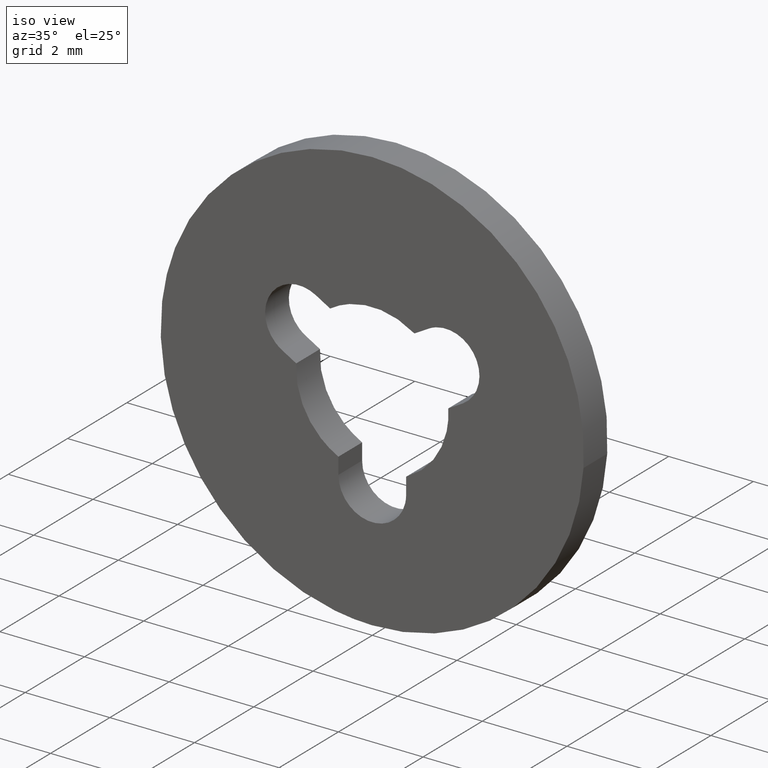
[diagram: clean part render]
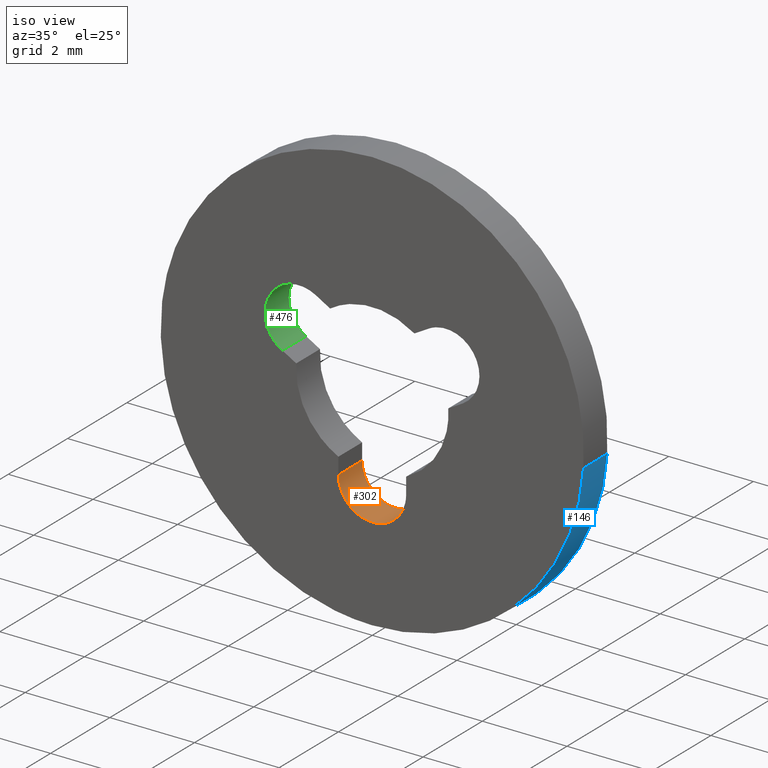
[diagram: same view with three faces highlighted in distinct colors, each labeled with its STEP entity id]
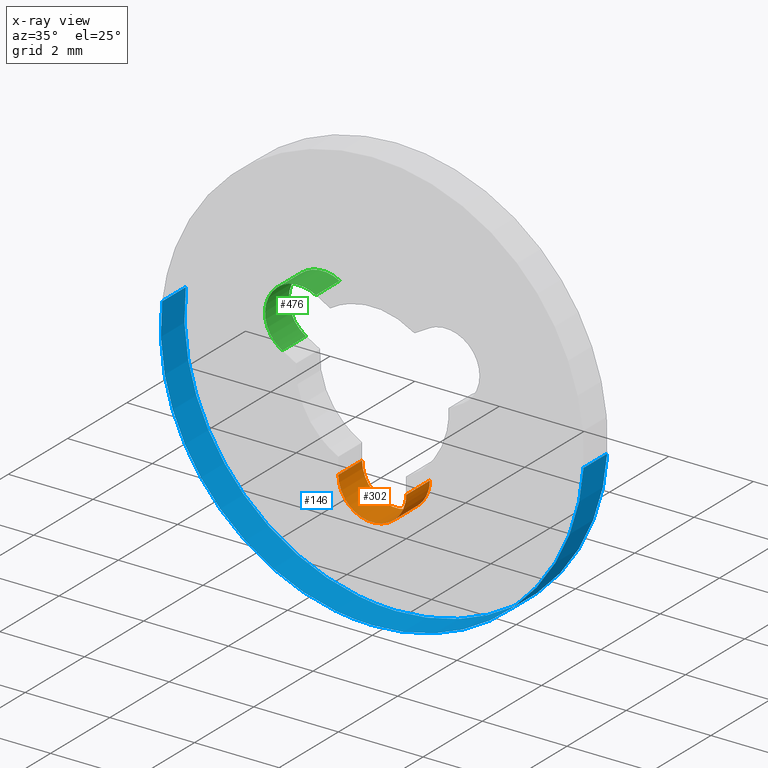
[diagram: x-ray of the same camera — body ghosted, the three highlighted faces saturated]
A machine part, iso view with three faces highlighted in distinct colors.
The next image is the same camera in x-ray (body ghosted, the three faces saturated) — at least one of them is partly hidden behind the body in this view.
Their STEP definitions:

[orange] entity #302 — the highlighted face is a freeform B-spline surface patch.
#230=CARTESIAN_POINT('',(0.799238577265486,0.820000000000024,-1.965104490107732));
#231=CARTESIAN_POINT('',(0.799238577265486,-0.020500000000001,-1.965104490107732));
#232=CARTESIAN_POINT('',(0.836333596761906,0.820000000000024,-2.814720119668256));
#233=CARTESIAN_POINT('',(0.836333596761906,-0.020500000000001,-2.814720119668256));
#234=CARTESIAN_POINT('',(-0.013961925149828,0.820000000000024,-2.799878156125113));
#235=CARTESIAN_POINT('',(-0.013961925149828,-0.020500000000001,-2.799878156125113));
#236=CARTESIAN_POINT('',(-0.864257447061562,0.820000000000024,-2.785036192581970));
#237=CARTESIAN_POINT('',(-0.864257447061562,-0.020500000000001,-2.785036192581970));
#238=CARTESIAN_POINT('',(-0.797533866986502,0.820000000000024,-1.937232723417723));
#239=CARTESIAN_POINT('',(-0.797533866986502,-0.020500000000001,-1.937232723417723));
#247=(BOUNDED_SURFACE()B_SPLINE_SURFACE(1,2,((#230,#232,#234,#236,#238),(#231,#233,#235,#237,#239)),.UNSPECIFIED.,.F.,.F.,.U.)B_SPLINE_SURFACE_WITH_KNOTS((2,2),(3,2,3),(0.0,1.0),(0.0,1.0,2.0),.UNSPECIFIED.)GEOMETRIC_REPRESENTATION_ITEM()RATIONAL_B_SPLINE_SURFACE(((1.0,0.685182990326359,1.0,0.685182990326359,1.0),(1.0,0.685182990326359,1.0,0.685182990326359,1.0)))REPRESENTATION_ITEM('')SURFACE());
#248=CARTESIAN_POINT('',(-0.800000000000000,0.0,-2.0));
#249=VERTEX_POINT('',#248);
#250=CARTESIAN_POINT('',(0.799999999999988,0.0,-1.999999860373660));
#251=VERTEX_POINT('',#250);
#252=CARTESIAN_POINT('',(-0.800000000000000,0.0,-2.0));
#253=CARTESIAN_POINT('',(-0.800000000000000,0.0,-2.461880246379777));
#254=CARTESIAN_POINT('',(-0.399999959693347,0.0,-2.692820346298606));
#255=CARTESIAN_POINT('',(0.000000080613306,0.0,-2.923760446217436));
#256=CARTESIAN_POINT('',(0.400000080613302,0.0,-2.692820276485433));
#257=CARTESIAN_POINT('',(0.800000080613298,0.0,-2.461880106753430));
#258=CARTESIAN_POINT('',(0.799999999999988,0.0,-1.999999860373660));
#266=(BOUNDED_CURVE()B_SPLINE_CURVE(2,(#252,#253,#254,#255,#256,#257,#258),.UNSPECIFIED.,.F.,.U.)B_SPLINE_CURVE_WITH_KNOTS((3,2,2,3),(0.0,0.333333333333333,0.666666666666667,1.0),.UNSPECIFIED.)CURVE()GEOMETRIC_REPRESENTATION_ITEM()RATIONAL_B_SPLINE_CURVE((1.0,0.866025389240028,1.0,0.866025389240028,1.0,0.866025389240028,1.0))REPRESENTATION_ITEM(''));
#267=EDGE_CURVE('',#249,#251,#266,.T.);
#268=ORIENTED_EDGE('',*,*,#267,.T.);
#269=CARTESIAN_POINT('',(0.799999999999988,0.800000000000023,-1.999999860373660));
#270=VERTEX_POINT('',#269);
#271=CARTESIAN_POINT('',(0.799999999999988,0.800000000000023,-1.999999860373660));
#272=CARTESIAN_POINT('',(0.799999999999988,0.0,-1.999999860373660));
#273=QUASI_UNIFORM_CURVE('',1,(#271,#272),.UNSPECIFIED.,.F.,.U.);
#274=EDGE_CURVE('',#270,#251,#273,.T.);
#275=ORIENTED_EDGE('',*,*,#274,.F.);
#276=CARTESIAN_POINT('',(-0.800000000000000,0.800000000000023,-2.0));
#277=VERTEX_POINT('',#276);
#278=CARTESIAN_POINT('',(-0.800000000000000,0.800000000000023,-2.0));
#279=CARTESIAN_POINT('',(-0.800000000000000,0.800000000000023,-2.461880246379777));
#280=CARTESIAN_POINT('',(-0.399999959693347,0.800000000000023,-2.692820346298606));
#281=CARTESIAN_POINT('',(0.000000080613306,0.800000000000023,-2.923760446217436));
#282=CARTESIAN_POINT('',(0.400000080613302,0.800000000000023,-2.692820276485433));
#283=CARTESIAN_POINT('',(0.800000080613298,0.800000000000023,-2.461880106753430));
#284=CARTESIAN_POINT('',(0.799999999999988,0.800000000000023,-1.999999860373660));
#292=(BOUNDED_CURVE()B_SPLINE_CURVE(2,(#278,#279,#280,#281,#282,#283,#284),.UNSPECIFIED.,.F.,.U.)B_SPLINE_CURVE_WITH_KNOTS((3,2,2,3),(0.0,0.333333333333333,0.666666666666667,1.0),.UNSPECIFIED.)CURVE()GEOMETRIC_REPRESENTATION_ITEM()RATIONAL_B_SPLINE_CURVE((1.0,0.866025389240028,1.0,0.866025389240028,1.0,0.866025389240028,1.0))REPRESENTATION_ITEM(''));
#293=EDGE_CURVE('',#277,#270,#292,.T.);
#294=ORIENTED_EDGE('',*,*,#293,.F.);
#295=CARTESIAN_POINT('',(-0.800000000000000,0.800000000000023,-2.0));
#296=CARTESIAN_POINT('',(-0.800000000000000,0.0,-2.0));
#297=QUASI_UNIFORM_CURVE('',1,(#295,#296),.UNSPECIFIED.,.F.,.U.);
#298=EDGE_CURVE('',#277,#249,#297,.T.);
#299=ORIENTED_EDGE('',*,*,#298,.T.);
#300=EDGE_LOOP('',(#268,#275,#294,#299));
#301=FACE_OUTER_BOUND('',#300,.T.);
#302=ADVANCED_FACE('',(#301),#247,.F.);

[blue] entity #146 — the highlighted face is a freeform B-spline surface patch.
#44=CARTESIAN_POINT('',(-4.965047631818332,0.820000000000024,0.590171173283792));
#45=CARTESIAN_POINT('',(-4.981938077243028,0.820000000000024,0.448073643189888));
#46=CARTESIAN_POINT('',(-4.990673992109334,0.820000000000024,0.305242697674285));
#47=CARTESIAN_POINT('',(-5.295916689783620,0.820000000000024,-4.685431294435048));
#48=CARTESIAN_POINT('',(-0.305242697674285,0.820000000000024,-4.990673992109334));
#49=CARTESIAN_POINT('',(4.685431294435048,0.820000000000024,-5.295916689783620));
#50=CARTESIAN_POINT('',(4.990673992109334,0.820000000000024,-0.305242697674285));
#51=CARTESIAN_POINT('',(-4.965047631818332,-0.020500000000001,0.590171173283792));
#52=CARTESIAN_POINT('',(-4.981938077243028,-0.020500000000001,0.448073643189888));
#53=CARTESIAN_POINT('',(-4.990673992109334,-0.020500000000001,0.305242697674285));
#54=CARTESIAN_POINT('',(-5.295916689783620,-0.020500000000001,-4.685431294435048));
#55=CARTESIAN_POINT('',(-0.305242697674285,-0.020500000000001,-4.990673992109334));
#56=CARTESIAN_POINT('',(4.685431294435048,-0.020500000000001,-5.295916689783620));
#57=CARTESIAN_POINT('',(4.990673992109334,-0.020500000000001,-0.305242697674285));
#65=(BOUNDED_SURFACE()B_SPLINE_SURFACE(2,1,((#44,#51),(#45,#52),(#46,#53),(#47,#54),(#48,#55),(#49,#56),(#50,#57)),.UNSPECIFIED.,.F.,.F.,.U.)B_SPLINE_SURFACE_WITH_KNOTS((3,2,2,3),(2,2),(0.0,0.331370849898476,8.615642097360375,16.899913344822270),(0.0,1.0),.UNSPECIFIED.)GEOMETRIC_REPRESENTATION_ITEM()RATIONAL_B_SPLINE_SURFACE(((0.977505800795127,0.977505800795127),(0.988284271247462,0.988284271247462),(1.0,1.0),(0.707106781186548,0.707106781186548),(1.0,1.0),(0.707106781186548,0.707106781186548),(1.0,1.0)))REPRESENTATION_ITEM('')SURFACE());
#66=CARTESIAN_POINT('',(-4.965048007634929,3.045997E-014,0.590168011561354));
#67=VERTEX_POINT('',#66);
#68=CARTESIAN_POINT('',(0.0,0.0,-5.0));
#69=VERTEX_POINT('',#68);
#70=CARTESIAN_POINT('',(-4.965048007634929,3.045997E-014,0.590168011561354));
#71=CARTESIAN_POINT('',(-5.000000000000001,0.0,0.296119000685819));
#72=CARTESIAN_POINT('',(-5.0,0.0,0.0));
#73=CARTESIAN_POINT('',(-5.000000000000001,0.0,-5.000000000000001));
#74=CARTESIAN_POINT('',(0.0,0.0,-5.0));
#82=(BOUNDED_CURVE()B_SPLINE_CURVE(2,(#70,#71,#72,#73,#74),.UNSPECIFIED.,.F.,.U.)B_SPLINE_CURVE_WITH_KNOTS((3,2,3),(0.229562581136241,0.250000000000000,0.500000000000000),.UNSPECIFIED.)CURVE()GEOMETRIC_REPRESENTATION_ITEM()RATIONAL_B_SPLINE_CURVE((0.956026965128767,0.976056074419019,1.0,0.707106781186548,1.0))REPRESENTATION_ITEM(''));
#83=EDGE_CURVE('',#67,#69,#82,.T.);
#84=ORIENTED_EDGE('',*,*,#83,.F.);
#85=CARTESIAN_POINT('',(-4.965048002999415,0.800000000000023,0.590168050559857));
#86=VERTEX_POINT('',#85);
#87=CARTESIAN_POINT('',(-4.965048002999415,0.800000000000023,0.590168050559857));
#88=CARTESIAN_POINT('',(-4.965048007634929,3.045997E-014,0.590168011561354));
#89=QUASI_UNIFORM_CURVE('',1,(#87,#88),.UNSPECIFIED.,.F.,.U.);
#90=EDGE_CURVE('',#86,#67,#89,.T.);
#91=ORIENTED_EDGE('',*,*,#90,.F.);
#92=CARTESIAN_POINT('',(0.0,0.800000000000023,-5.0));
#93=VERTEX_POINT('',#92);
#94=CARTESIAN_POINT('',(-4.965048002999415,0.800000000000023,0.590168050559856));
#95=CARTESIAN_POINT('',(-5.0,0.800000000000023,0.296119020391210));
#96=CARTESIAN_POINT('',(-5.0,0.800000000000023,0.0));
#97=CARTESIAN_POINT('',(-5.000000000000001,0.800000000000023,-5.000000000000001));
#98=CARTESIAN_POINT('',(0.0,0.800000000000023,-5.0));
#106=(BOUNDED_CURVE()B_SPLINE_CURVE(2,(#94,#95,#96,#97,#98),.UNSPECIFIED.,.F.,.U.)B_SPLINE_CURVE_WITH_KNOTS((3,2,3),(0.229562579808786,0.250000000000000,0.500000000000000),.UNSPECIFIED.)CURVE()GEOMETRIC_REPRESENTATION_ITEM()RATIONAL_B_SPLINE_CURVE((0.956026962526900,0.976056072863809,1.0,0.707106781186548,1.0))REPRESENTATION_ITEM(''));
#107=EDGE_CURVE('',#86,#93,#106,.T.);
#108=ORIENTED_EDGE('',*,*,#107,.T.);
#109=CARTESIAN_POINT('',(4.990674099992546,0.800000000000023,-0.305240933789139));
#110=VERTEX_POINT('',#109);
#111=CARTESIAN_POINT('',(0.0,0.800000000000023,-5.0));
#112=CARTESIAN_POINT('',(4.703532000033385,0.800000000000023,-5.000000000000001));
#113=CARTESIAN_POINT('',(4.990674099992546,0.800000000000023,-0.305240933789139));
#121=(BOUNDED_CURVE()B_SPLINE_CURVE(2,(#111,#112,#113),.UNSPECIFIED.,.F.,.U.)B_SPLINE_CURVE_WITH_KNOTS((3,3),(0.500000000000000,0.739333023226263),.UNSPECIFIED.)CURVE()GEOMETRIC_REPRESENTATION_ITEM()RATIONAL_B_SPLINE_CURVE((1.0,0.719603921835620,0.976072172374189))REPRESENTATION_ITEM(''));
#122=EDGE_CURVE('',#93,#110,#121,.T.);
#123=ORIENTED_EDGE('',*,*,#122,.T.);
#124=CARTESIAN_POINT('',(4.990674101339240,2.014708E-014,-0.305240911770624));
#125=VERTEX_POINT('',#124);
#126=CARTESIAN_POINT('',(4.990674099992546,0.800000000000023,-0.305240933789139));
#127=CARTESIAN_POINT('',(4.990674101339240,2.014708E-014,-0.305240911770624));
#128=QUASI_UNIFORM_CURVE('',1,(#126,#127),.UNSPECIFIED.,.F.,.U.);
#129=EDGE_CURVE('',#110,#125,#128,.T.);
#130=ORIENTED_EDGE('',*,*,#129,.T.);
#131=CARTESIAN_POINT('',(0.0,0.0,-5.0));
#132=CARTESIAN_POINT('',(4.703532020823824,0.0,-4.999999999999999));
#133=CARTESIAN_POINT('',(4.990674101339240,2.014708E-014,-0.305240911770624));
#141=(BOUNDED_CURVE()B_SPLINE_CURVE(2,(#131,#132,#133),.UNSPECIFIED.,.F.,.U.)B_SPLINE_CURVE_WITH_KNOTS((3,3),(0.500000000000000,0.739333023987528),.UNSPECIFIED.)CURVE()GEOMETRIC_REPRESENTATION_ITEM()RATIONAL_B_SPLINE_CURVE((1.0,0.719603920943743,0.976072174005725))REPRESENTATION_ITEM(''));
#142=EDGE_CURVE('',#69,#125,#141,.T.);
#143=ORIENTED_EDGE('',*,*,#142,.F.);
#144=EDGE_LOOP('',(#84,#91,#108,#123,#130,#143));
#145=FACE_OUTER_BOUND('',#144,.T.);
#146=ADVANCED_FACE('',(#145),#65,.T.);

[green] entity #476 — the highlighted face is a freeform B-spline surface patch.
#389=CARTESIAN_POINT('',(-2.123123344245450,0.0,0.302073969352699));
#390=VERTEX_POINT('',#389);
#397=CARTESIAN_POINT('',(-2.123123344245450,0.800000000000023,0.302073969352699));
#398=VERTEX_POINT('',#397);
#404=CARTESIAN_POINT('',(-2.123123344245450,0.800000000000023,0.302073969352699));
#405=CARTESIAN_POINT('',(-2.123123344245450,0.0,0.302073969352699));
#406=QUASI_UNIFORM_CURVE('',1,(#404,#405),.UNSPECIFIED.,.F.,.U.);
#407=EDGE_CURVE('',#398,#390,#406,.T.);
#412=CARTESIAN_POINT('',(-2.101543604236167,0.820000000000024,0.290413800383952));
#413=CARTESIAN_POINT('',(-2.101543604236167,-0.020500000000001,0.290413800383952));
#414=CARTESIAN_POINT('',(-2.855858767453020,0.820000000000024,0.683173799761309));
#415=CARTESIAN_POINT('',(-2.855858767453020,-0.020500000000001,0.683173799761309));
#416=CARTESIAN_POINT('',(-2.417781505582944,0.820000000000024,1.412104588795622));
#417=CARTESIAN_POINT('',(-2.417781505582944,-0.020500000000001,1.412104588795622));
#418=CARTESIAN_POINT('',(-1.979704243712868,0.820000000000024,2.141035377829935));
#419=CARTESIAN_POINT('',(-1.979704243712868,-0.020500000000001,2.141035377829935));
#420=CARTESIAN_POINT('',(-1.278877034577208,0.820000000000024,1.659275058267507));
#421=CARTESIAN_POINT('',(-1.278877034577208,-0.020500000000001,1.659275058267507));
#429=(BOUNDED_SURFACE()B_SPLINE_SURFACE(1,2,((#412,#414,#416,#418,#420),(#413,#415,#417,#419,#421)),.UNSPECIFIED.,.F.,.F.,.U.)B_SPLINE_SURFACE_WITH_KNOTS((2,2),(3,2,3),(0.0,1.0),(0.0,1.0,2.0),.UNSPECIFIED.)GEOMETRIC_REPRESENTATION_ITEM()RATIONAL_B_SPLINE_SURFACE(((1.0,0.685182990326359,1.0,0.685182990326359,1.0),(1.0,0.685182990326359,1.0,0.685182990326359,1.0)))REPRESENTATION_ITEM('')SURFACE());
#430=CARTESIAN_POINT('',(-1.332000000000000,0.0,1.692800000000000));
#431=VERTEX_POINT('',#430);
#432=CARTESIAN_POINT('',(-1.332000000000000,0.0,1.692799999999999));
#433=CARTESIAN_POINT('',(-1.733986352333857,0.0,1.924936338147488));
#434=CARTESIAN_POINT('',(-2.135008295443140,0.0,1.691137903387843));
#435=CARTESIAN_POINT('',(-2.536030238552423,0.0,1.457339468628198));
#436=CARTESIAN_POINT('',(-2.532058660846635,0.0,0.993157894756795));
#437=CARTESIAN_POINT('',(-2.528087083140846,0.0,0.528976320885393));
#438=CARTESIAN_POINT('',(-2.123123344245450,0.0,0.302073969352700));
#446=(BOUNDED_CURVE()B_SPLINE_CURVE(2,(#432,#433,#434,#435,#436,#437,#438),.UNSPECIFIED.,.F.,.U.)B_SPLINE_CURVE_WITH_KNOTS((3,2,2,3),(0.0,0.333333333333333,0.666666666666667,1.0),.UNSPECIFIED.)CURVE()GEOMETRIC_REPRESENTATION_ITEM()RATIONAL_B_SPLINE_CURVE((1.0,0.864942373379540,1.0,0.864942373379540,1.0,0.864942373379540,1.0))REPRESENTATION_ITEM(''));
#447=EDGE_CURVE('',#431,#390,#446,.T.);
#448=ORIENTED_EDGE('',*,*,#447,.T.);
#449=ORIENTED_EDGE('',*,*,#407,.F.);
#450=CARTESIAN_POINT('',(-1.332000000000000,0.800000000000023,1.692800000000000));
#451=VERTEX_POINT('',#450);
#452=CARTESIAN_POINT('',(-1.332000000000000,0.800000000000023,1.692799999999999));
#453=CARTESIAN_POINT('',(-1.733986352333857,0.800000000000023,1.924936338147488));
#454=CARTESIAN_POINT('',(-2.135008295443140,0.800000000000023,1.691137903387843));
#455=CARTESIAN_POINT('',(-2.536030238552423,0.800000000000023,1.457339468628198));
#456=CARTESIAN_POINT('',(-2.532058660846635,0.800000000000023,0.993157894756795));
#457=CARTESIAN_POINT('',(-2.528087083140846,0.800000000000023,0.528976320885393));
#458=CARTESIAN_POINT('',(-2.123123344245450,0.800000000000023,0.302073969352700));
#466=(BOUNDED_CURVE()B_SPLINE_CURVE(2,(#452,#453,#454,#455,#456,#457,#458),.UNSPECIFIED.,.F.,.U.)B_SPLINE_CURVE_WITH_KNOTS((3,2,2,3),(0.0,0.333333333333333,0.666666666666667,1.0),.UNSPECIFIED.)CURVE()GEOMETRIC_REPRESENTATION_ITEM()RATIONAL_B_SPLINE_CURVE((1.0,0.864942373379540,1.0,0.864942373379540,1.0,0.864942373379540,1.0))REPRESENTATION_ITEM(''));
#467=EDGE_CURVE('',#451,#398,#466,.T.);
#468=ORIENTED_EDGE('',*,*,#467,.F.);
#469=CARTESIAN_POINT('',(-1.332000000000000,0.800000000000023,1.692800000000000));
#470=CARTESIAN_POINT('',(-1.332000000000000,0.0,1.692800000000000));
#471=QUASI_UNIFORM_CURVE('',1,(#469,#470),.UNSPECIFIED.,.F.,.U.);
#472=EDGE_CURVE('',#451,#431,#471,.T.);
#473=ORIENTED_EDGE('',*,*,#472,.T.);
#474=EDGE_LOOP('',(#448,#449,#468,#473));
#475=FACE_OUTER_BOUND('',#474,.T.);
#476=ADVANCED_FACE('',(#475),#429,.F.);